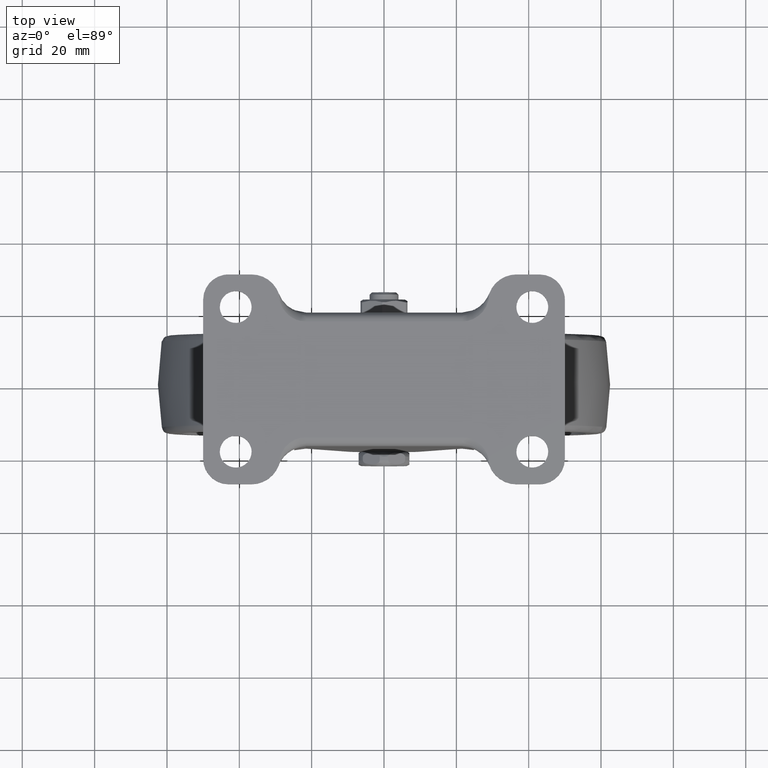
[diagram: clean part render]
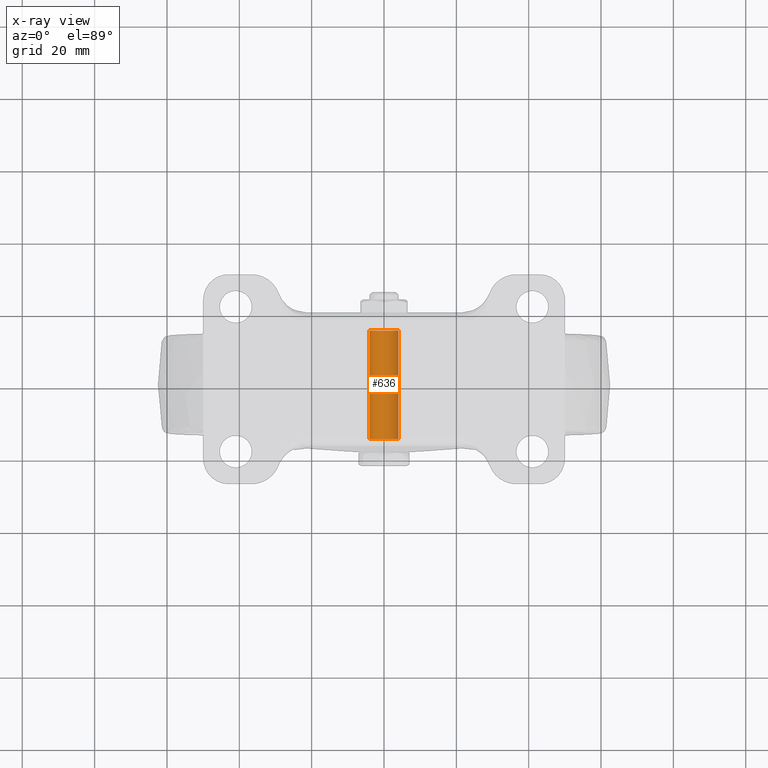
[diagram: x-ray — body ghosted, one internal face saturated and labeled with its STEP entity id]
A machine part, top view, then the same camera in x-ray: the body is ghosted and one INTERNAL B-rep face — a face not visible from any outside direction — is saturated and labeled: STEP entity #636.
In plain terms, the highlighted face is a freeform B-spline surface patch.
Its self-contained STEP definition (entity closure, byte-faithful):
#534=CARTESIAN_POINT('',(-35.027961894545349,-15.750000000000005,-83.027863061372983));
#535=CARTESIAN_POINT('',(-35.014449538205582,-15.750000000000007,-83.141541085448111));
#536=CARTESIAN_POINT('',(-35.007460806312537,-15.750000000000000,-83.255805841860578));
#537=CARTESIAN_POINT('',(-34.763266648173108,-15.750000000000009,-87.248345035548041));
#538=CARTESIAN_POINT('',(-38.755805841860571,-15.750000000000000,-87.492539193687463));
#539=CARTESIAN_POINT('',(-42.748345035548034,-15.750000000000009,-87.736733351826885));
#540=CARTESIAN_POINT('',(-42.992539193687463,-15.750000000000000,-83.744194158139422));
#541=CARTESIAN_POINT('',(-35.027961894545349,15.768750000000006,-83.027863061372983));
#542=CARTESIAN_POINT('',(-35.014449538205582,15.768750000000006,-83.141541085448111));
#543=CARTESIAN_POINT('',(-35.007460806312537,15.768750000000001,-83.255805841860578));
#544=CARTESIAN_POINT('',(-34.763266648173108,15.768749999999997,-87.248345035548041));
#545=CARTESIAN_POINT('',(-38.755805841860571,15.768750000000001,-87.492539193687463));
#546=CARTESIAN_POINT('',(-42.748345035548034,15.768749999999997,-87.736733351826885));
#547=CARTESIAN_POINT('',(-42.992539193687463,15.768750000000001,-83.744194158139422));
#555=(BOUNDED_SURFACE()B_SPLINE_SURFACE(2,1,((#534,#541),(#535,#542),(#536,#543),(#537,#544),(#538,#545),(#539,#546),(#540,#547)),.UNSPECIFIED.,.F.,.F.,.U.)B_SPLINE_SURFACE_WITH_KNOTS((3,2,2,3),(2,2),(0.0,0.265096679918781,6.892513677888295,13.519930675857809),(0.0,31.518750000000011),.UNSPECIFIED.)GEOMETRIC_REPRESENTATION_ITEM()RATIONAL_B_SPLINE_SURFACE(((0.977505800795127,0.977505800795127),(0.988284271247462,0.988284271247462),(1.0,1.0),(0.707106781186548,0.707106781186548),(1.0,1.0),(0.707106781186548,0.707106781186548),(1.0,1.0)))REPRESENTATION_ITEM('')SURFACE());
#556=CARTESIAN_POINT('',(-35.027961894632810,-15.0,-83.027863060637088));
#557=VERTEX_POINT('',#556);
#558=CARTESIAN_POINT('',(-39.0,-15.0,-87.500000000000014));
#559=VERTEX_POINT('',#558);
#560=CARTESIAN_POINT('',(-35.027961894632810,-14.999999999999998,-83.027863060637088));
#561=CARTESIAN_POINT('',(-35.0,-15.0,-83.263103520648698));
#562=CARTESIAN_POINT('',(-35.0,-15.0,-83.500000000000000));
#563=CARTESIAN_POINT('',(-34.999999999999993,-14.999999999999995,-87.500000000000028));
#564=CARTESIAN_POINT('',(-39.0,-15.0,-87.500000000000014));
#572=(BOUNDED_CURVE()B_SPLINE_CURVE(2,(#560,#561,#562,#563,#564),.UNSPECIFIED.,.F.,.U.)B_SPLINE_CURVE_WITH_KNOTS((3,2,3),(0.229562473453023,0.250000000000000,0.500000000000000),.UNSPECIFIED.)CURVE()GEOMETRIC_REPRESENTATION_ITEM()RATIONAL_B_SPLINE_CURVE((0.956026754065145,0.976055948260282,1.0,0.707106781186548,1.0))REPRESENTATION_ITEM(''));
#573=EDGE_CURVE('',#557,#559,#572,.T.);
#574=ORIENTED_EDGE('',*,*,#573,.F.);
#575=CARTESIAN_POINT('',(-35.027961894632810,15.0,-83.027863060637088));
#576=VERTEX_POINT('',#575);
#577=CARTESIAN_POINT('',(-35.027961894632810,-15.0,-83.027863060637088));
#578=CARTESIAN_POINT('',(-35.027961894632810,15.0,-83.027863060637088));
#579=QUASI_UNIFORM_CURVE('',1,(#577,#578),.UNSPECIFIED.,.F.,.U.);
#580=EDGE_CURVE('',#557,#576,#579,.T.);
#581=ORIENTED_EDGE('',*,*,#580,.T.);
#582=CARTESIAN_POINT('',(-39.0,15.0,-87.500000000000014));
#583=VERTEX_POINT('',#582);
#584=CARTESIAN_POINT('',(-35.027961894632817,15.0,-83.027863060637088));
#585=CARTESIAN_POINT('',(-35.0,15.000000000000002,-83.263103520648698));
#586=CARTESIAN_POINT('',(-35.0,15.0,-83.500000000000000));
#587=CARTESIAN_POINT('',(-34.999999999999993,14.999999999999995,-87.500000000000028));
#588=CARTESIAN_POINT('',(-39.0,15.0,-87.500000000000014));
#596=(BOUNDED_CURVE()B_SPLINE_CURVE(2,(#584,#585,#586,#587,#588),.UNSPECIFIED.,.F.,.U.)B_SPLINE_CURVE_WITH_KNOTS((3,2,3),(0.229562473453024,0.250000000000000,0.500000000000000),.UNSPECIFIED.)CURVE()GEOMETRIC_REPRESENTATION_ITEM()RATIONAL_B_SPLINE_CURVE((0.956026754065147,0.976055948260283,1.0,0.707106781186548,1.0))REPRESENTATION_ITEM(''));
#597=EDGE_CURVE('',#576,#583,#596,.T.);
#598=ORIENTED_EDGE('',*,*,#597,.T.);
#599=CARTESIAN_POINT('',(-42.992539193642983,15.0,-83.744194158866861));
#600=VERTEX_POINT('',#599);
#601=CARTESIAN_POINT('',(-39.0,15.0,-87.500000000000014));
#602=CARTESIAN_POINT('',(-42.762824266249048,14.999999999999996,-87.500000000000014));
#603=CARTESIAN_POINT('',(-42.992539193642976,15.000000000000002,-83.744194158866861));
#611=(BOUNDED_CURVE()B_SPLINE_CURVE(2,(#601,#602,#603),.UNSPECIFIED.,.F.,.U.)B_SPLINE_CURVE_WITH_KNOTS((3,3),(0.500000000000000,0.739332962179093),.UNSPECIFIED.)CURVE()GEOMETRIC_REPRESENTATION_ITEM()RATIONAL_B_SPLINE_CURVE((1.0,0.719603993356829,0.976072041538448))REPRESENTATION_ITEM(''));
#612=EDGE_CURVE('',#583,#600,#611,.T.);
#613=ORIENTED_EDGE('',*,*,#612,.T.);
#614=CARTESIAN_POINT('',(-42.992539193642983,-15.0,-83.744194158866847));
#615=VERTEX_POINT('',#614);
#616=CARTESIAN_POINT('',(-42.992539193642983,-15.0,-83.744194158866847));
#617=CARTESIAN_POINT('',(-42.992539193642983,15.0,-83.744194158866861));
#618=QUASI_UNIFORM_CURVE('',1,(#616,#617),.UNSPECIFIED.,.F.,.U.);
#619=EDGE_CURVE('',#615,#600,#618,.T.);
#620=ORIENTED_EDGE('',*,*,#619,.F.);
#621=CARTESIAN_POINT('',(-39.0,-15.0,-87.500000000000014));
#622=CARTESIAN_POINT('',(-42.762824266249048,-14.999999999999996,-87.500000000000014));
#623=CARTESIAN_POINT('',(-42.992539193642976,-15.000000000000002,-83.744194158866847));
#631=(BOUNDED_CURVE()B_SPLINE_CURVE(2,(#621,#622,#623),.UNSPECIFIED.,.F.,.U.)B_SPLINE_CURVE_WITH_KNOTS((3,3),(0.500000000000000,0.739332962179093),.UNSPECIFIED.)CURVE()GEOMETRIC_REPRESENTATION_ITEM()RATIONAL_B_SPLINE_CURVE((1.0,0.719603993356829,0.976072041538448))REPRESENTATION_ITEM(''));
#632=EDGE_CURVE('',#559,#615,#631,.T.);
#633=ORIENTED_EDGE('',*,*,#632,.F.);
#634=EDGE_LOOP('',(#574,#581,#598,#613,#620,#633));
#635=FACE_OUTER_BOUND('',#634,.T.);
#636=ADVANCED_FACE('',(#635),#555,.F.);